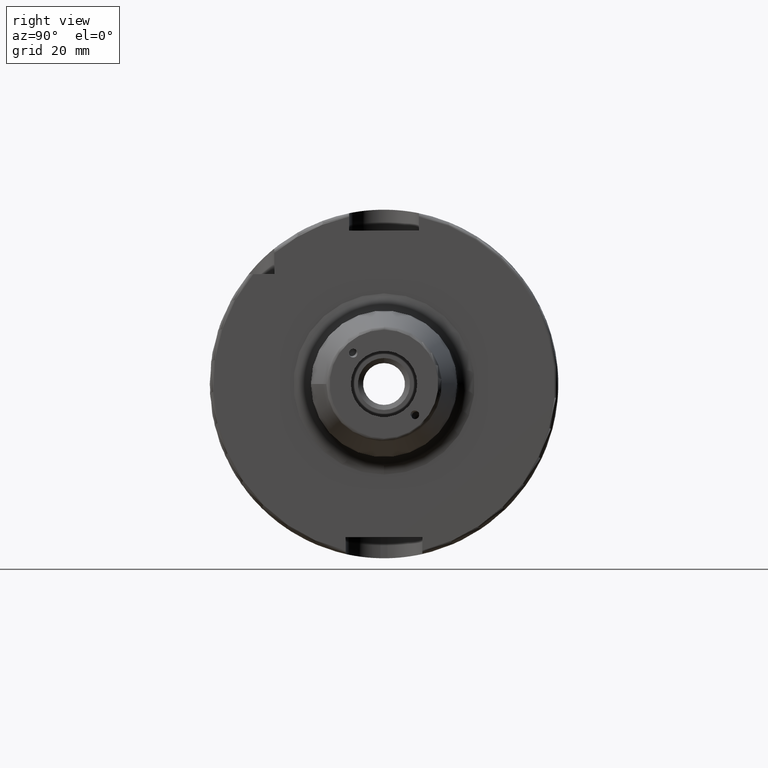
[diagram: clean part render]
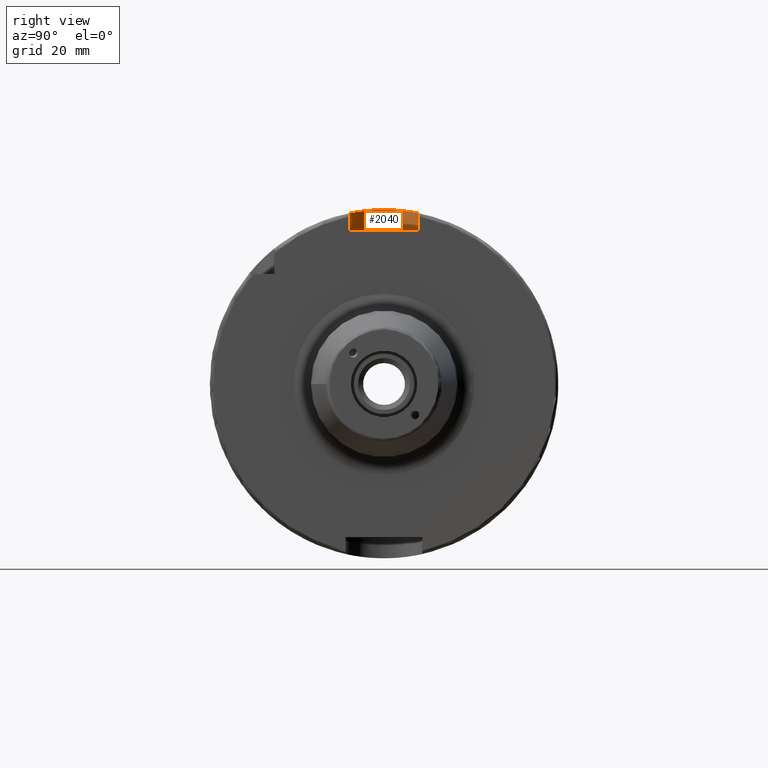
[diagram: same view with one face highlighted and labeled with its STEP entity id]
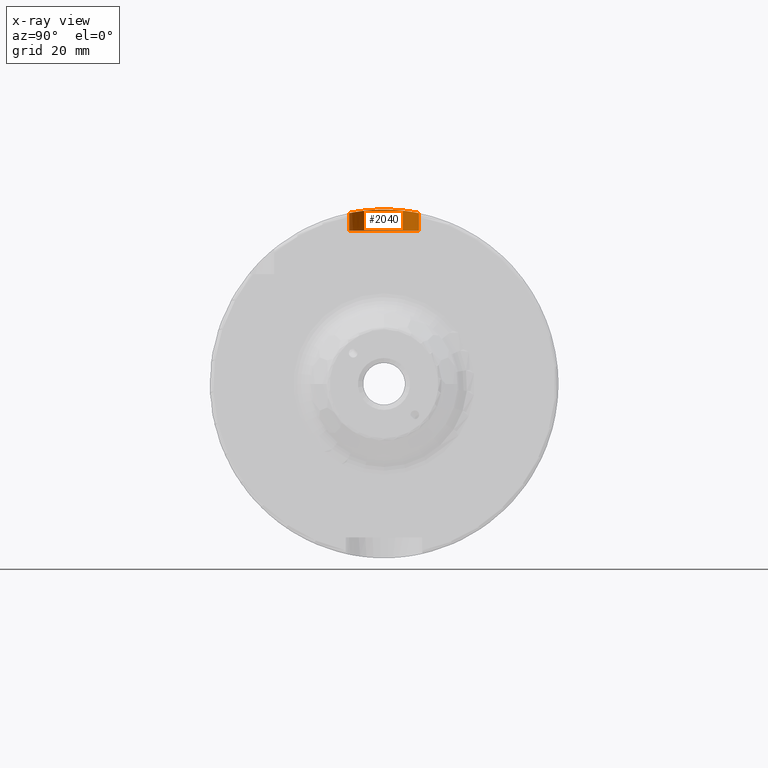
[diagram: x-ray of the same camera — body ghosted, the highlighted face saturated]
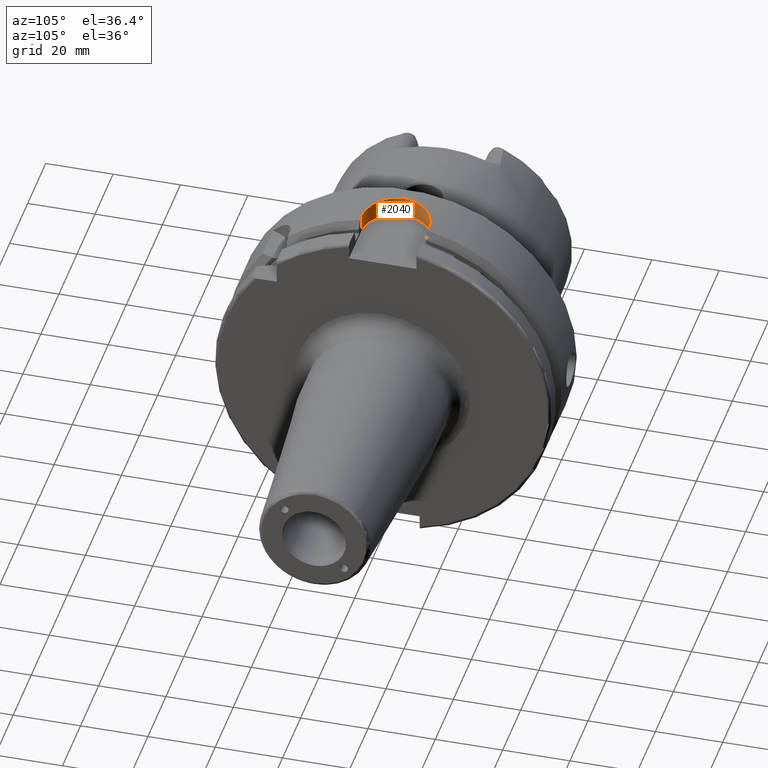
[diagram: same view with one face highlighted and labeled with its STEP entity id]
A machine part, right view. The second image highlights one B-rep face of the part: STEP entity #2040.
The next image is the same camera in x-ray: the body ghosted, the highlighted face saturated — about 0% of this face is hidden behind the body in this view.
A second angle (auxiliary view) of the same face is appended — the face is thin or edge-on in the first view.
In plain terms, the highlighted cylindrical surface (edge-blend (fillet) strip) has radius 10 mm, axis along (0, 0, 1).
Its self-contained STEP definition (entity closure, byte-faithful):
#65=B_SPLINE_CURVE_WITH_KNOTS('',3,(#3996,#3997,#3998,#3999,#4000,#4001,
#4002,#4003,#4004,#4005,#4006,#4007,#4008,#4009,#4010,#4011,#4012,#4013),
 .UNSPECIFIED.,.F.,.F.,(4,2,2,2,2,2,2,2,4),(0.,0.377795255890194,0.755590511780389,
1.13336459804459,1.51113868430879,1.88891277057299,2.26668685683718,2.64448211272738,
3.02227736861757),.UNSPECIFIED.);
#194=CYLINDRICAL_SURFACE('',#2270,10.);
#278=FACE_OUTER_BOUND('',#406,.T.);
#406=EDGE_LOOP('',(#1722,#1723,#1724,#1725));
#544=LINE('',#4304,#651);
#545=LINE('',#4308,#652);
#651=VECTOR('',#2772,10.);
#652=VECTOR('',#2777,10.);
#753=CIRCLE('',#2271,10.);
#927=VERTEX_POINT('',#3993);
#928=VERTEX_POINT('',#3995);
#974=VERTEX_POINT('',#4302);
#975=VERTEX_POINT('',#4306);
#1170=EDGE_CURVE('',#927,#928,#65,.T.);
#1246=EDGE_CURVE('',#974,#927,#544,.T.);
#1247=EDGE_CURVE('',#975,#974,#753,.T.);
#1248=EDGE_CURVE('',#975,#928,#545,.T.);
#1722=ORIENTED_EDGE('',*,*,#1170,.F.);
#1723=ORIENTED_EDGE('',*,*,#1246,.F.);
#1724=ORIENTED_EDGE('',*,*,#1247,.F.);
#1725=ORIENTED_EDGE('',*,*,#1248,.T.);
#2040=ADVANCED_FACE('',(#278),#194,.F.);
#2270=AXIS2_PLACEMENT_3D('',#4305,#2773,#2774);
#2271=AXIS2_PLACEMENT_3D('',#4307,#2775,#2776);
#2772=DIRECTION('',(0.,0.,1.));
#2773=DIRECTION('center_axis',(0.,0.,1.));
#2774=DIRECTION('ref_axis',(0.,1.,0.));
#2775=DIRECTION('center_axis',(0.,0.,1.));
#2776=DIRECTION('ref_axis',(0.,1.,0.));
#2777=DIRECTION('',(0.,0.,1.));
#3993=CARTESIAN_POINT('',(15.,-10.,48.9897948556636));
#3995=CARTESIAN_POINT('',(15.,10.,48.9897948556636));
#3996=CARTESIAN_POINT('Ctrl Pts',(15.,-10.,48.9897948556636));
#3997=CARTESIAN_POINT('Ctrl Pts',(13.740682480366,-10.,48.9897948556636));
#3998=CARTESIAN_POINT('Ctrl Pts',(12.3998222283811,-9.74762796248614,49.0433876618447));
#3999=CARTESIAN_POINT('Ctrl Pts',(9.93707994969945,-8.72605417648382,49.2354150792771));
#4000=CARTESIAN_POINT('Ctrl Pts',(8.81489539818993,-7.95703102192089,49.3709085101933));
#4001=CARTESIAN_POINT('Ctrl Pts',(7.04301862271998,-6.18515424645094,49.6240337638318));
#4002=CARTESIAN_POINT('Ctrl Pts',(6.27395658455242,-5.06294861197626,49.7583347151863));
#4003=CARTESIAN_POINT('Ctrl Pts',(5.25235457764165,-2.60013306081865,49.9476188647081));
#4004=CARTESIAN_POINT('Ctrl Pts',(4.99999999999999,-1.259246954214,50.));
#4005=CARTESIAN_POINT('Ctrl Pts',(4.99999999999999,1.259246954214,50.));
#4006=CARTESIAN_POINT('Ctrl Pts',(5.25235457764165,2.60013306081865,49.9476188647081));
#4007=CARTESIAN_POINT('Ctrl Pts',(6.27395658455242,5.06294861197626,49.7583347151863));
#4008=CARTESIAN_POINT('Ctrl Pts',(7.04301862271998,6.18515424645094,49.6240337638318));
#4009=CARTESIAN_POINT('Ctrl Pts',(8.81489539818993,7.95703102192089,49.3709085101933));
#4010=CARTESIAN_POINT('Ctrl Pts',(9.93707994969945,8.72605417648382,49.2354150792771));
#4011=CARTESIAN_POINT('Ctrl Pts',(12.3998222283811,9.74762796248614,49.0433876618447));
#4012=CARTESIAN_POINT('Ctrl Pts',(13.740682480366,10.,48.9897948556636));
#4013=CARTESIAN_POINT('Ctrl Pts',(15.,10.,48.9897948556636));
#4302=CARTESIAN_POINT('',(15.,-10.,44.));
#4304=CARTESIAN_POINT('',(15.,-10.,44.));
#4305=CARTESIAN_POINT('Origin',(15.,0.,44.));
#4306=CARTESIAN_POINT('',(15.,10.,44.));
#4307=CARTESIAN_POINT('Origin',(15.,0.,44.));
#4308=CARTESIAN_POINT('',(15.,10.,44.));